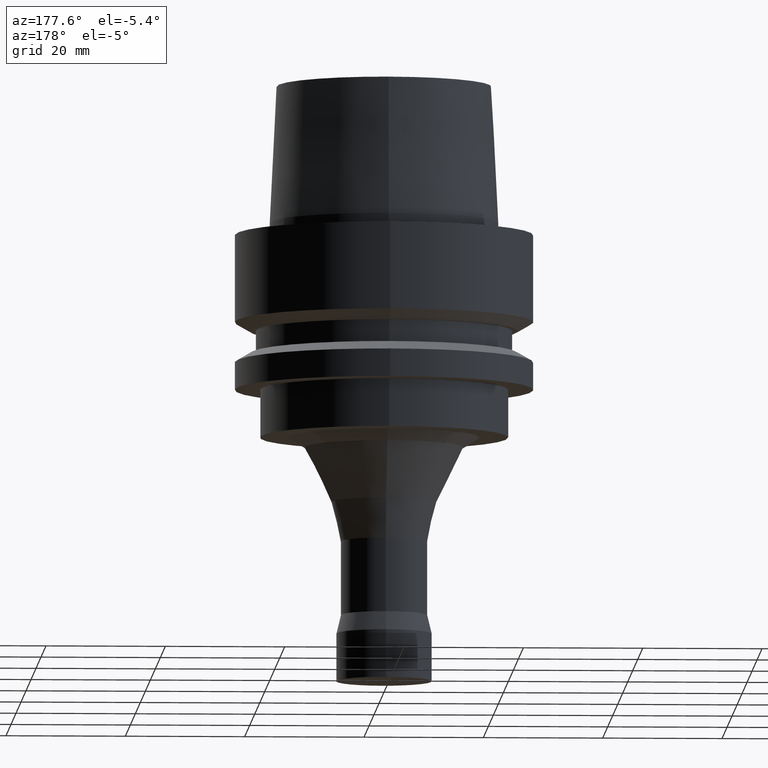
[diagram: clean part render]
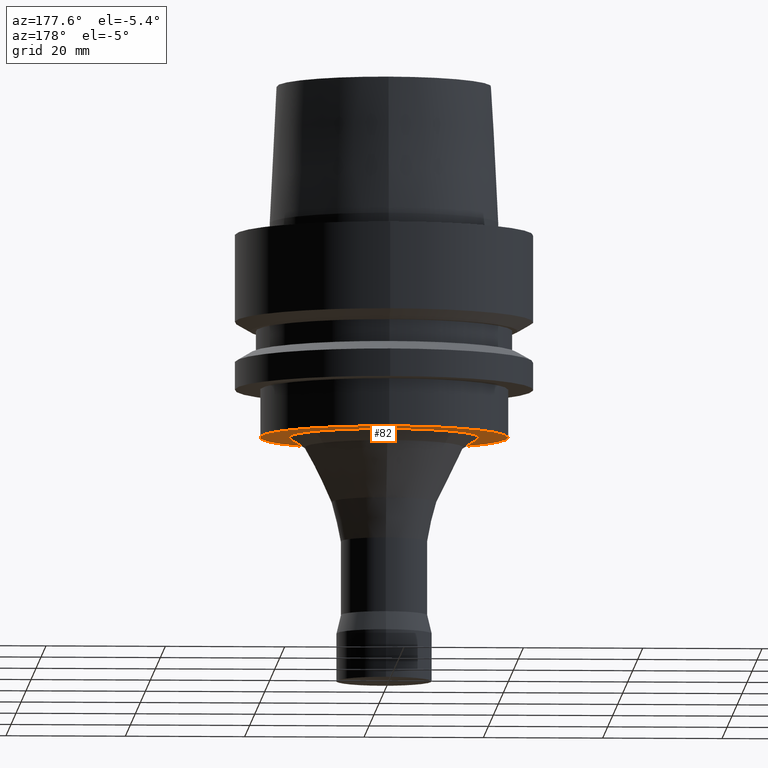
[diagram: same view with one face highlighted and labeled with its STEP entity id]
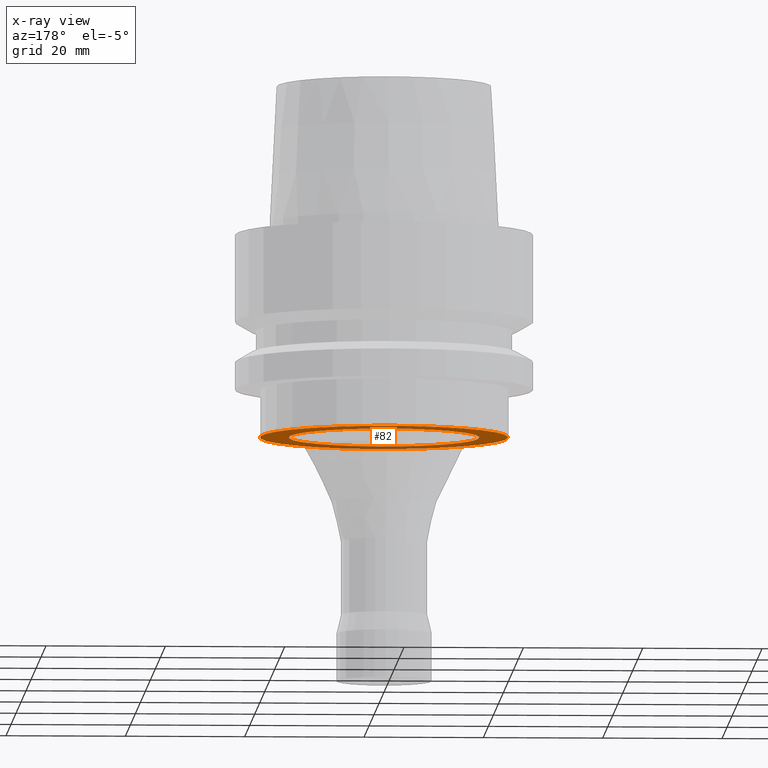
[diagram: x-ray of the same camera — body ghosted, the highlighted face saturated]
A machine part, auxiliary view. The second image highlights one B-rep face of the part: STEP entity #82.
The next image is the same camera in x-ray: the body ghosted, the highlighted face saturated — about 28% of this face is hidden behind the body in this view.
In plain terms, the highlighted planar face has unit normal (0, 0, -1).
Its self-contained STEP definition (entity closure, byte-faithful):
#82=ADVANCED_FACE('',(#117,#118),#119,.T.);
#117=FACE_BOUND('',#178,.T.);
#118=FACE_OUTER_BOUND('',#179,.T.);
#119=PLANE('',#180);
#178=EDGE_LOOP('',(#253));
#179=EDGE_LOOP('',(#254));
#180=AXIS2_PLACEMENT_3D('',#255,#256,#257);
#253=ORIENTED_EDGE('',*,*,#328,.T.);
#254=ORIENTED_EDGE('',*,*,#329,.T.);
#255=CARTESIAN_POINT('',(2.0818995585505E-015,8.0,-34.0));
#256=DIRECTION('',(6.12323399573677E-017,1.22464679914735E-016,-1.0));
#257=DIRECTION('',(-1.23259516440783E-032,1.0,1.22464679914735E-016));
#328=EDGE_CURVE('',#354,#354,#355,.T.);
#329=EDGE_CURVE('',#356,#356,#357,.T.);
#354=VERTEX_POINT('',#394);
#355=CIRCLE('',#395,16.0);
#356=VERTEX_POINT('',#396);
#357=CIRCLE('',#397,20.8);
#394=CARTESIAN_POINT('',(2.0818995585505E-015,16.0,-34.0));
#395=AXIS2_PLACEMENT_3D('',#440,#441,#442);
#396=CARTESIAN_POINT('',(2.0818995585505E-015,20.8,-34.0));
#397=AXIS2_PLACEMENT_3D('',#443,#444,#445);
#440=CARTESIAN_POINT('',(2.0818995585505E-015,4.163799117101E-015,-34.0));
#441=DIRECTION('',(-6.12323399573676E-017,-1.22464679914735E-016,1.0));
#442=DIRECTION('',(-1.23259516440783E-032,1.0,1.22464679914735E-016));
#443=CARTESIAN_POINT('',(2.0818995585505E-015,4.163799117101E-015,-34.0));
#444=DIRECTION('',(6.12323399573677E-017,1.22464679914735E-016,-1.0));
#445=DIRECTION('',(-1.23259516440783E-032,1.0,1.22464679914735E-016));